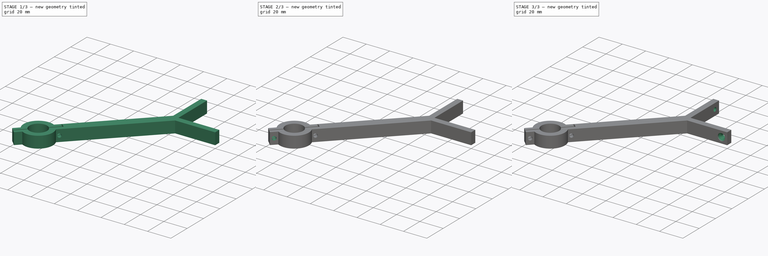
[diagram: build sequence overview — one tinted view per stage of 3, left to right]
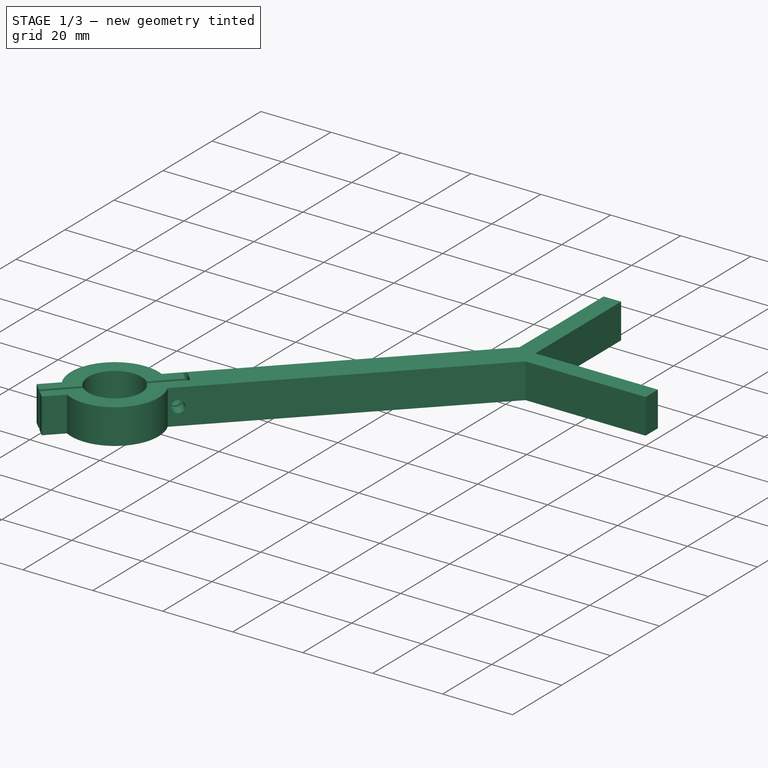
[diagram: stage 1 of 3 — iso view after this stage's code; geometry added in this stage tinted green]
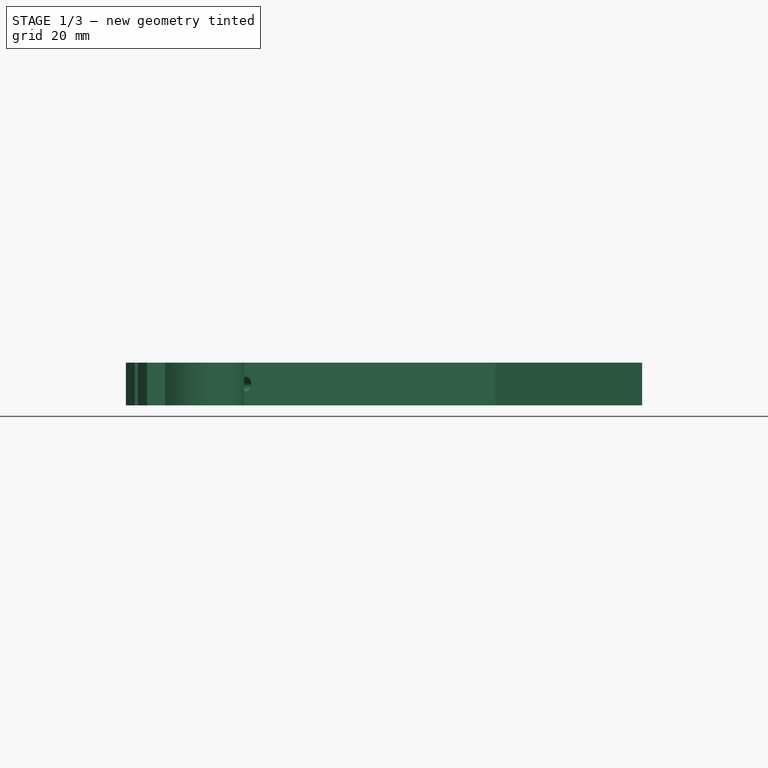
[diagram: stage 1 of 3 — front view after this stage's code; geometry added in this stage tinted green]
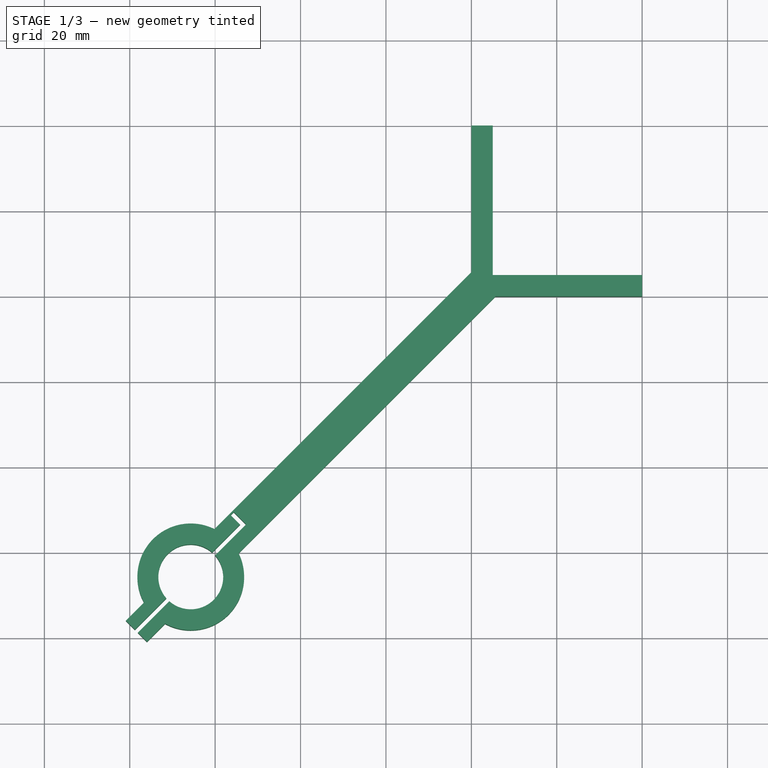
[diagram: stage 1 of 3 — top view after this stage's code; geometry added in this stage tinted green]
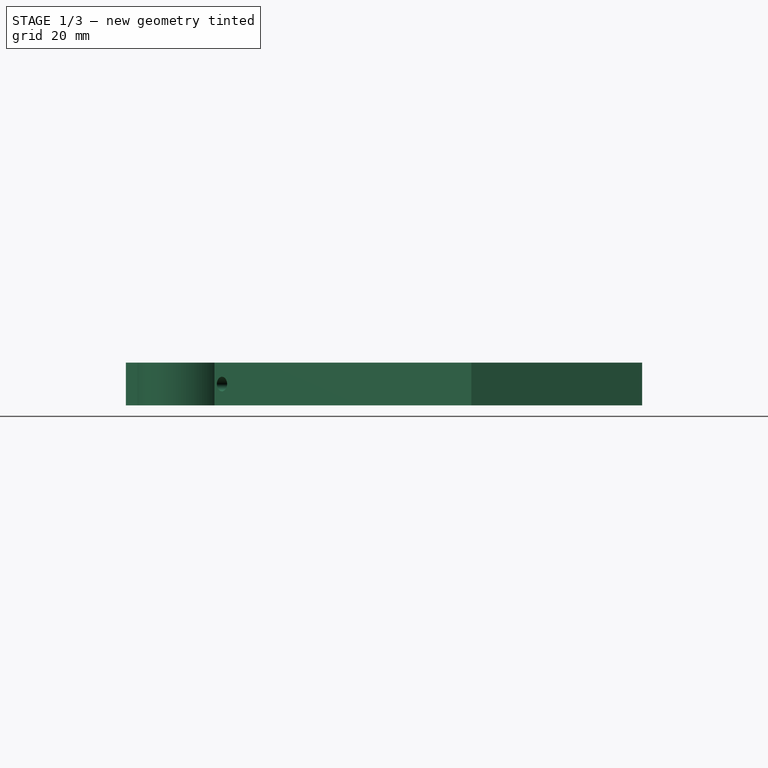
[diagram: stage 1 of 3 — right view after this stage's code; geometry added in this stage tinted green]
FCSTD DOCUMENT  (FreeCAD 0.21R33771 (Git))
Label: holders
License: All rights reserved
LicenseURL: https://en.wikipedia.org/wiki/All_rights_reserved
objects: Sketcher::SketchObject×5, PartDesign::Hole×4, PartDesign::Pad×1, PartDesign::Body×1
note: 16 computed .brp shape members not serialized (recipe doc carries the construction recipe); baked Part::Feature solids carry a one-line shape summary decoded from their .brp

FEATURE [Sketcher::SketchObject] Sketch
  FullyConstrained = true
  MapMode = 5
  Support = -> [XY_Plane]
  sketch-geometry (33):
    g0: LineSegment StartX=0 StartY=40 StartZ=0 EndX=0 EndY=5.65685 EndZ=0
    g1: LineSegment StartX=0 StartY=5.65685 StartZ=0 EndX=-55.9224 EndY=-50.2655 EndZ=0
    g2: LineSegment StartX=-54.5082 StartY=-60.165 StartZ=0 EndX=5.65685 EndY=0 EndZ=0
    g3: LineSegment StartX=5.65685 StartY=0 StartZ=0 EndX=40 EndY=0 EndZ=0
    g4: LineSegment StartX=40 StartY=0 StartZ=0 EndX=40 EndY=5 EndZ=0
    g5: LineSegment StartX=40 StartY=5 StartZ=0 EndX=5 EndY=5 EndZ=0
    g6: LineSegment StartX=0 StartY=40 StartZ=0 EndX=5 EndY=40 EndZ=0
    g7: LineSegment StartX=5 StartY=5 StartZ=0 EndX=5 EndY=40 EndZ=0
    g8: LineSegment StartX=5 StartY=5 StartZ=0 EndX=-65.7107 EndY=-65.7107 EndZ=0
    g9: LineSegment StartX=-71.4266 StartY=-70.7195 StartZ=0 EndX=-70.7195 EndY=-71.4266 EndZ=0
    g10: GeomPoint X=-76.6708 Y=-71.7211 Z=0
    g11: GeomPoint X=-71.7211 Y=-76.6708 Z=0
    g12: LineSegment StartX=-76.6708 StartY=-71.7211 StartZ=0 EndX=-80.9135 EndY=-75.9637 EndZ=0
    g13: LineSegment StartX=-80.9135 StartY=-75.9637 StartZ=0 EndX=-78.7922 EndY=-78.085 EndZ=0
    g14: LineSegment StartX=-71.7211 StartY=-76.6708 StartZ=0 EndX=-75.9637 EndY=-80.9135 EndZ=0
    g15: LineSegment StartX=-78.085 StartY=-78.7922 StartZ=0 EndX=-75.9637 EndY=-80.9135 EndZ=0
    g16: ArcOfCircle CenterX=-65.7107 CenterY=-65.7107 CenterZ=0 NormalX=0 NormalY=0 NormalZ=1 AngleXU=0 Radius=12.5 StartAngle=4.21078 EndAngle=6.74285
    g17: LineSegment StartX=-71.4266 StartY=-70.7195 StartZ=0 EndX=-78.7922 EndY=-78.085 EndZ=0
    g18: LineSegment StartX=-70.7195 StartY=-71.4266 StartZ=0 EndX=-78.085 EndY=-78.7922 EndZ=0
    g19: LineSegment StartX=-52.7404 StartY=-53.4475 StartZ=0 EndX=-59.9948 EndY=-60.7019 EndZ=0
    g20: ArcOfCircle CenterX=-65.7107 CenterY=-65.7107 CenterZ=0 NormalX=0 NormalY=0 NormalZ=1 AngleXU=0 Radius=7.6 StartAngle=3.99283 EndAngle=7.00275
    g21: GeomPoint X=-56.9831 Y=-57.6902 Z=0
    g22: LineSegment StartX=-56.9831 StartY=-57.6902 StartZ=0 EndX=-54.5082 EndY=-60.165 EndZ=0
    g23: ArcOfCircle CenterX=-65.7107 CenterY=-65.7107 CenterZ=0 NormalX=0 NormalY=0 NormalZ=1 AngleXU=0 Radius=7.6 StartAngle=0.851235 EndAngle=3.86115
    g24: ArcOfCircle CenterX=-65.7107 CenterY=-65.7107 CenterZ=0 NormalX=0 NormalY=0 NormalZ=1 AngleXU=0 Radius=12.5 StartAngle=1.11113 EndAngle=3.6432
    g25: LineSegment StartX=-60.7019 StartY=-59.9948 StartZ=0 EndX=-54.1546 EndY=-53.4475 EndZ=0
    g26: LineSegment StartX=-60.165 StartY=-54.5082 StartZ=0 EndX=-56.6295 EndY=-50.9726 EndZ=0
    g27: LineSegment StartX=-56.6295 StartY=-50.9726 StartZ=0 EndX=-55.9224 EndY=-50.2655 EndZ=0
    g28: LineSegment StartX=-54.1546 StartY=-53.4475 StartZ=0 EndX=-56.3467 EndY=-51.2555 EndZ=0
    g29: LineSegment StartX=-56.3467 StartY=-51.2555 StartZ=0 EndX=-55.6396 EndY=-50.5484 EndZ=0
    g30: LineSegment StartX=-55.6396 StartY=-50.5484 StartZ=0 EndX=-52.7404 EndY=-53.4475 EndZ=0
    g31: LineSegment StartX=-60.7019 StartY=-59.9948 StartZ=0 EndX=-59.9948 EndY=-60.7019 EndZ=0
    g32: LineSegment StartX=-55.9224 StartY=-50.2655 StartZ=0 EndX=-55.6396 EndY=-50.5484 EndZ=0
  constraints (90):
    c: PointOnObject(g0,g-2)
    c: PointOnObject(g0,g-2)
    c: Coincident(g2,g16)
    c: PointOnObject(g2,g-1)
    c: Coincident(g3,g2)
    c: PointOnObject(g3,g-1)
    c: Coincident(g4,g3)
    c: Coincident(g5,g4)
    c: Horizontal(g5)
    c: Coincident(g6,g0)
    c: Horizontal(g6)
    c: Coincident(g7,g5)
    c: Coincident(g7,g6)
    c: Vertical(g7)
    c: Parallel(g1,g2)
    c: Coincident(g0,g1)
    c: Equal(g6,g4)
    c: Vertical(g4)
    c: Equal(g7,g5)
    c: Angle(g-1,g2) = 0.785398
    c: Equal(g3,g0)
    c: Distance(g4) = 5
    c: Coincident(g8,g5)
    c: PointOnObject(g-1,g8)
    c: Distance(g8) = 100
    c: Distance(g7) = 35
    c: Perpendicular(g9,g8)
    c: Coincident(g12,g10)
    c: Coincident(g13,g12)
    c: Coincident(g14,g11)
    c: Coincident(g15,g14)
    c: Perpendicular(g12,g13)
    c: Equal(g13,g15)
    c: Distance(g9) = 1
    c: Coincident(g16,g14)
    c: Coincident(g17,g13)
    c: Coincident(g18,g15)
    c: Parallel(g17,g18)
    c: Parallel(g18,g8)
    c: Parallel(g12,g17)
    c: Parallel(g14,g18)
    c: Perpendicular(g15,g18)
    c: Equal(g17,g18)
    c: Diameter(g16) = 25
    c: Distance(g13) = 3
    c: Distance(g12) = 6
    c: Distance(g0,g2) = 8
    c: Coincident(g20,g16)
    c: Coincident(g20,g18)
    c: Coincident(g20,g19)
    c: Parallel(g19,g2)
    c: PointOnObject(g21,g19)
    c: Coincident(g22,g21)
    c: Coincident(g22,g2)
    c: Perpendicular(g19,g22)
    c: Coincident(g23,g8)
    c: Coincident(g23,g17)
    c: Equal(g23,g20)
    c: Coincident(g17,g9)
    c: Coincident(g18,g9)
    c: Diameter(g23) = 15.2
    c: Coincident(g23,g16)
    c: Coincident(g24,g16)
    c: Coincident(g24,g12)
    c: Coincident(g25,g23)
    c: Coincident(g26,g24)
    c: Parallel(g25,g19)
    c: Parallel(g26,g25)
    c: Distance(g23,g19) = 1
    c: Coincident(g27,g26)
    c: Coincident(g27,g1)
    c: Parallel(g26,g27)
    c: Distance(g26,g1) = 1
    c: Distance(g21,g19) = 6
    c: Equal(g24,g16)
    c: Coincident(g28,g25)
    c: Coincident(g29,g28)
    c: Coincident(g30,g29)
    c: Coincident(g30,g19)
    c: Perpendicular(g30,g1)
    c: Perpendicular(g30,g29)
    c: Distance(g1,g29) = 0.4
    c: Parallel(g30,g28)
    c: Equal(g27,g29)
    c: Coincident(g31,g23)
    c: Coincident(g31,g19)
    c: Perpendicular(g31,g8)
    c: Coincident(g32,g1)
    c: Coincident(g32,g29)
    c: Perpendicular(g32,g1)
FEATURE [PartDesign::Pad] Pad
  Direction = (0,0,1)
  Length = 10
  Length2 = 10
  Profile = -> Sketch
  ReferenceAxis = -> Sketch [N_Axis]
  Type = 0
FEATURE [Sketcher::SketchObject] Sketch001
  ExternalGeometry = -> [Pad]
  FullyConstrained = true
  MapMode = 5
  Placement = pos=(-2.82843,2.82843,0) rot=(-0.281085,0.678598,0.678598;3.68962rad)
  Support = -> [Pad]
  sketch-geometry (4):
    g0: LineSegment StartX=76.0862 StartY=10 StartZ=0 EndX=81.0862 EndY=-3.6e-15 EndZ=0
    g1: LineSegment StartX=81.0862 StartY=10 StartZ=0 EndX=76.0862 EndY=-3.6e-15 EndZ=0
    g2: GeomPoint X=78.5862 Y=5 Z=0
    g3: Circle CenterX=78.5862 CenterY=5 CenterZ=0 NormalX=0 NormalY=0 NormalZ=1 AngleXU=0 Radius=1.5
  constraints (8):
    c: Coincident(g0,g-4)
    c: Coincident(g0,g-5)
    c: Coincident(g1,g-5)
    c: Coincident(g1,g-3)
    c: PointOnObject(g2,g1)
    c: PointOnObject(g2,g0)
    c: Coincident(g3,g2)
    c: Diameter(g3) = 3
FEATURE [Sketcher::SketchObject] Sketch002
  ExternalGeometry = -> [Pad]
  FullyConstrained = true
  MapMode = 5
  Placement = pos=(-2.47487,2.47487,0) rot=(-0.281085,0.678598,0.678598;3.68962rad)
  Support = -> [Pad]
  sketch-geometry (4):
    g0: LineSegment StartX=110.929 StartY=10 StartZ=0 EndX=104.929 EndY=0 EndZ=0
    g1: LineSegment StartX=104.929 StartY=10 StartZ=0 EndX=110.929 EndY=0 EndZ=0
    g2: GeomPoint X=107.929 Y=5 Z=0
    g3: Circle CenterX=107.929 CenterY=5 CenterZ=0 NormalX=0 NormalY=0 NormalZ=1 AngleXU=0 Radius=1.5
  constraints (8):
    c: Coincident(g0,g-4)
    c: Coincident(g0,g-5)
    c: Coincident(g1,g-5)
    c: Coincident(g1,g-4)
    c: PointOnObject(g2,g0)
    c: PointOnObject(g2,g1)
    c: Diameter(g3) = 3
    c: Coincident(g3,g2)
FEATURE [PartDesign::Hole] Hole
  BaseFeature = -> Pad
  CustomThreadClearance = 0
  Depth = 346.005
  DepthType = 1
  Diameter = 3.4
  DrillForDepth = false
  DrillPoint = 1
  DrillPointAngle = 118
  HoleCutCountersinkAngle = 90
  HoleCutCustomValues = false
  HoleCutDepth = 0
  HoleCutDiameter = 6.1
  HoleCutType = 0
  ModelThread = false
  Profile = -> Sketch001
  Tapered = false
  TaperedAngle = 90
  ThreadClass = 0
  ThreadDepth = 346.005
  ThreadDepthType = 0
  ThreadDirection = 0
  ThreadFit = 0
  ThreadSize = 9
  ThreadType = 1
  Threaded = false
  UseCustomThreadClearance = false
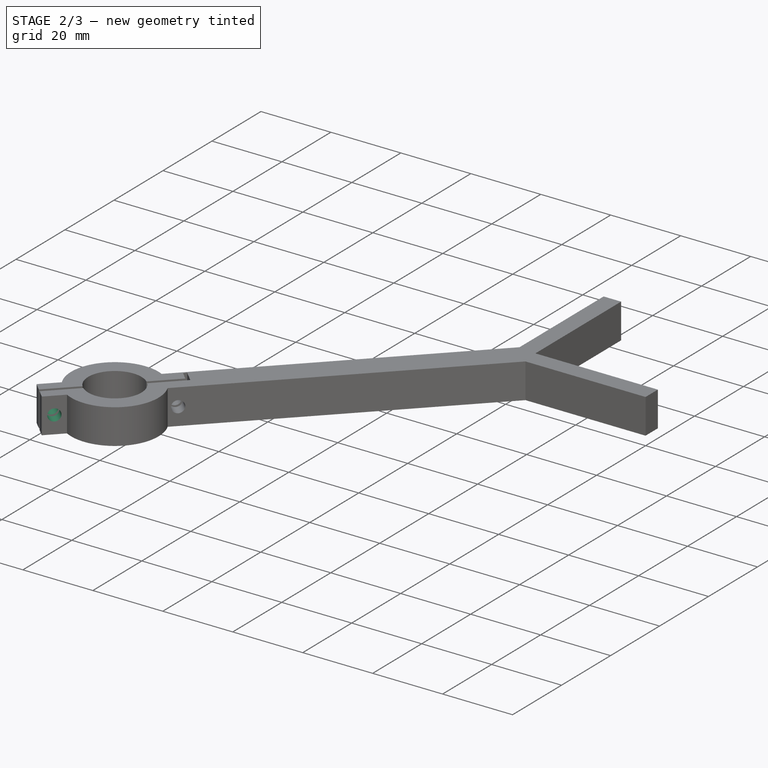
[diagram: stage 2 of 3 — iso view after this stage's code; geometry added in this stage tinted green]
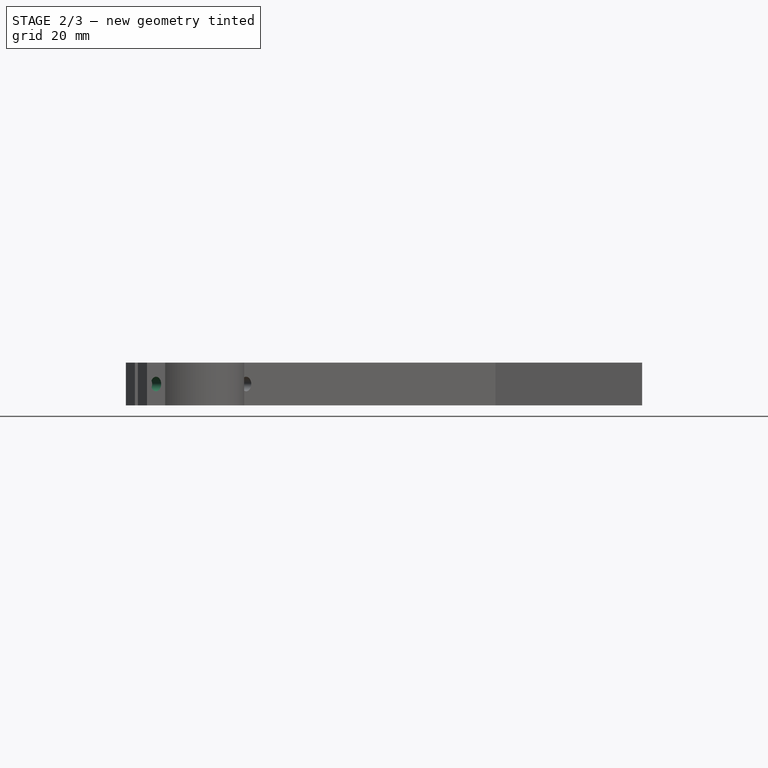
[diagram: stage 2 of 3 — front view after this stage's code; geometry added in this stage tinted green]
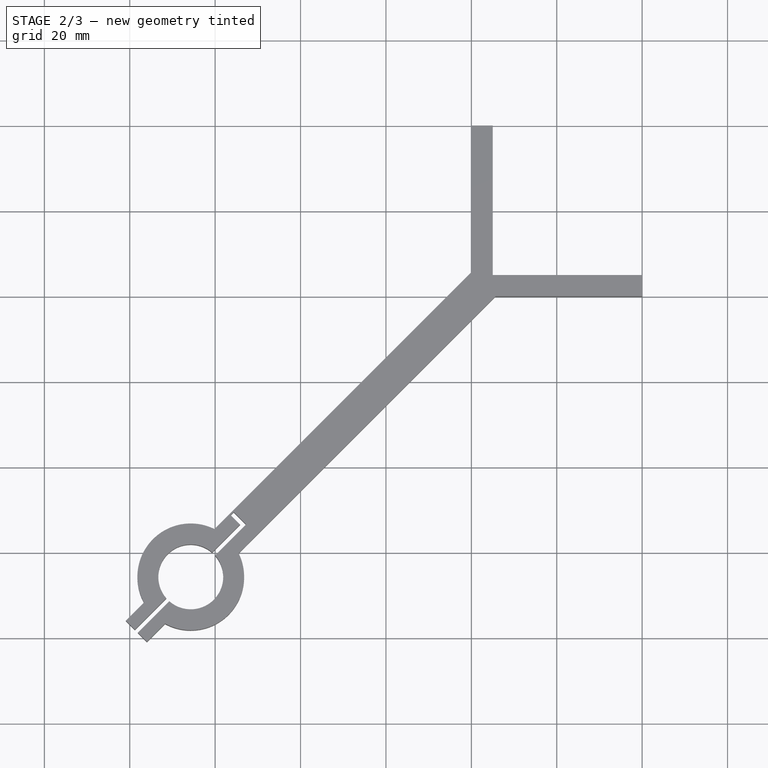
[diagram: stage 2 of 3 — top view after this stage's code; geometry added in this stage tinted green]
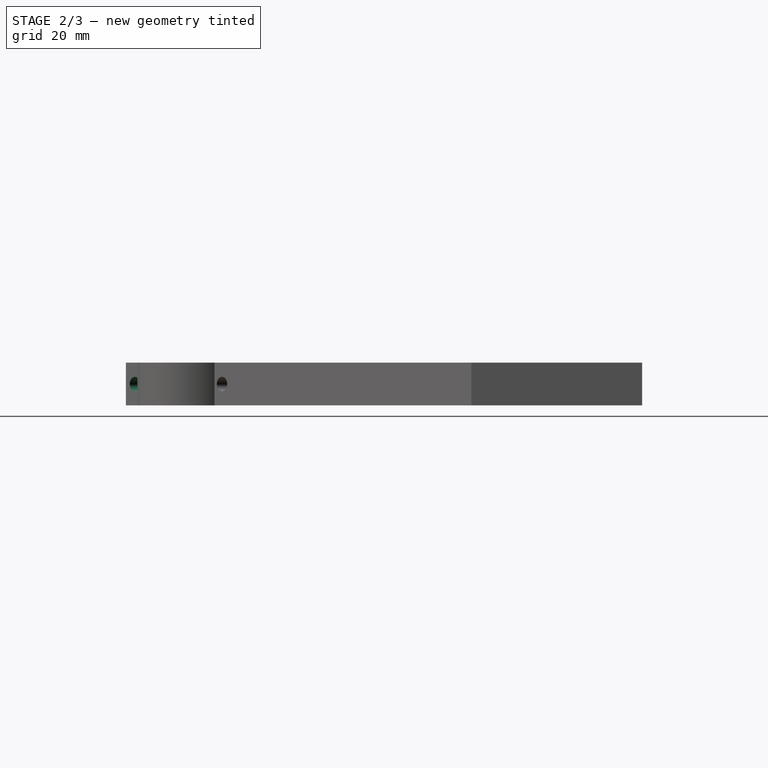
[diagram: stage 2 of 3 — right view after this stage's code; geometry added in this stage tinted green]
FEATURE [PartDesign::Hole] Hole001
  BaseFeature = -> Hole
  CustomThreadClearance = 0
  Depth = 346.005
  DepthType = 1
  Diameter = 3.4
  DrillForDepth = false
  DrillPoint = 1
  DrillPointAngle = 118
  HoleCutCountersinkAngle = 90
  HoleCutCustomValues = false
  HoleCutDepth = 0
  HoleCutDiameter = 6.1
  HoleCutType = 0
  ModelThread = false
  Profile = -> Sketch002
  Tapered = false
  TaperedAngle = 90
  ThreadClass = 0
  ThreadDepth = 346.005
  ThreadDepthType = 0
  ThreadDirection = 0
  ThreadFit = 0
  ThreadSize = 9
  ThreadType = 1
  Threaded = false
  UseCustomThreadClearance = false
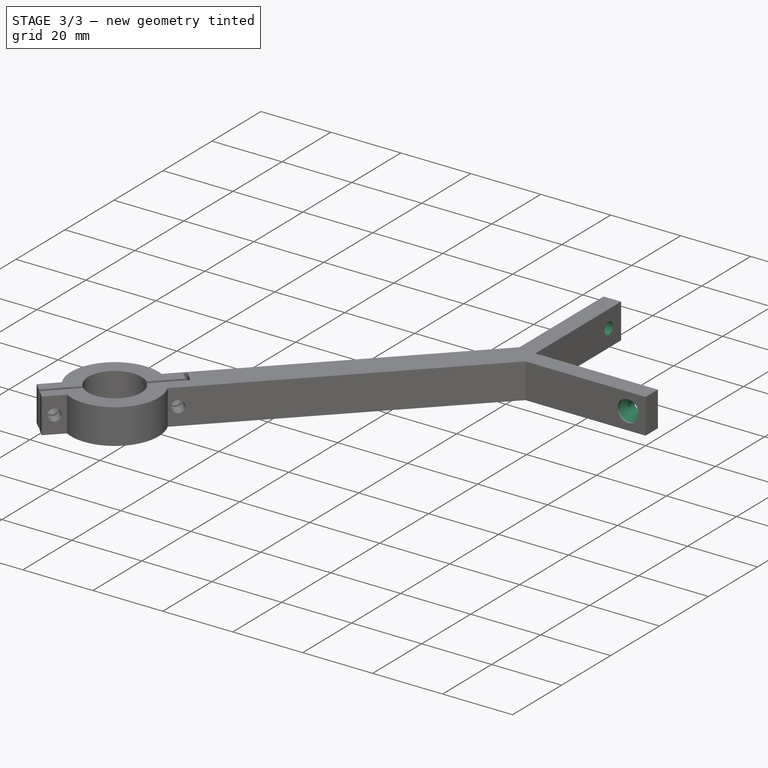
[diagram: stage 3 of 3 — iso view after this stage's code; geometry added in this stage tinted green]
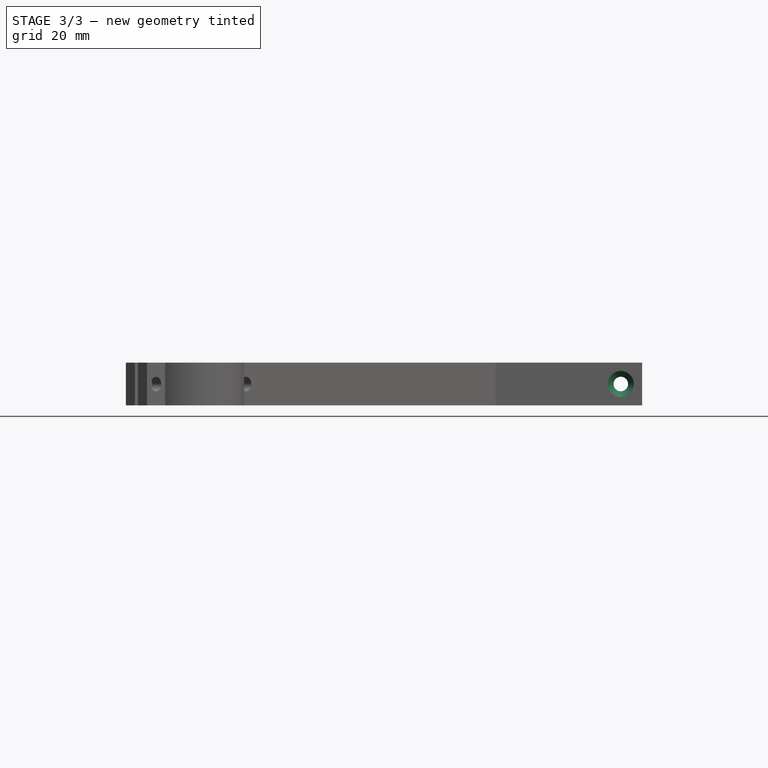
[diagram: stage 3 of 3 — front view after this stage's code; geometry added in this stage tinted green]
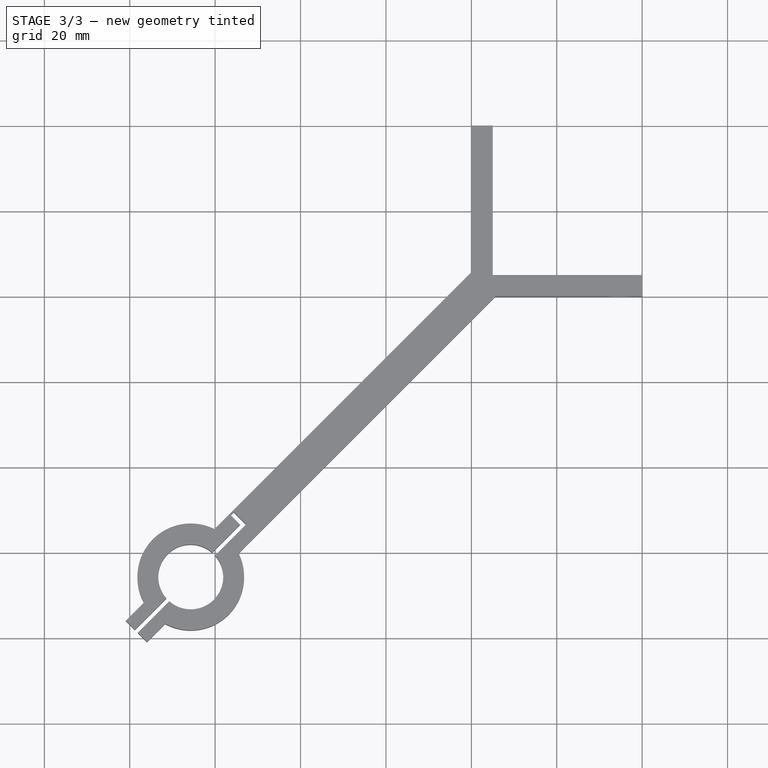
[diagram: stage 3 of 3 — top view after this stage's code; geometry added in this stage tinted green]
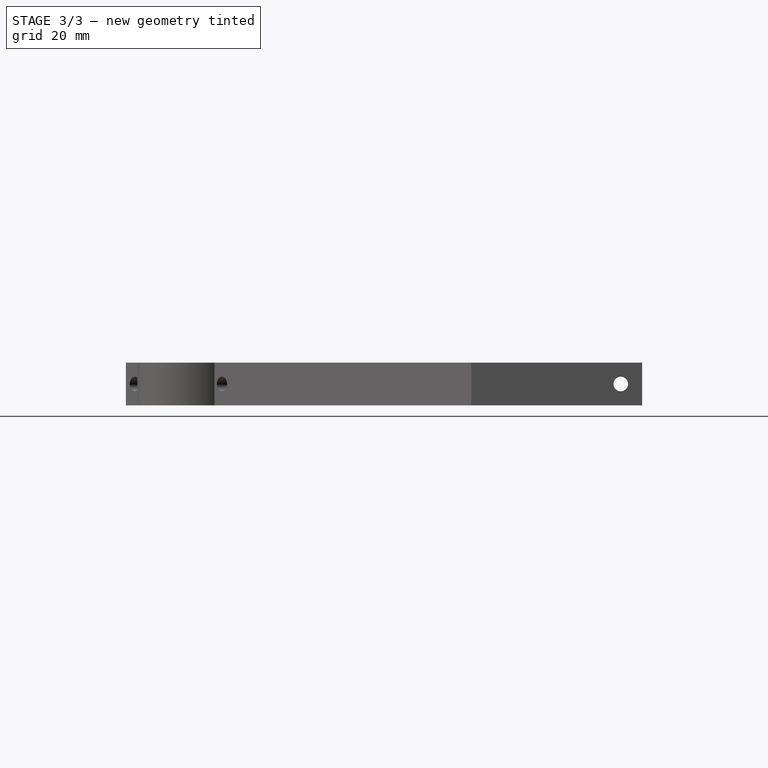
[diagram: stage 3 of 3 — right view after this stage's code; geometry added in this stage tinted green]
FEATURE [Sketcher::SketchObject] Sketch003
  ExternalGeometry = -> [Hole001]
  FullyConstrained = true
  MapMode = 5
  Placement = pos=(0,0,0) rot=(1,0,0;1.5708rad)
  Support = -> [Hole001]
  sketch-geometry (3):
    g0: Circle CenterX=35 CenterY=5 CenterZ=0 NormalX=0 NormalY=0 NormalZ=1 AngleXU=0 Radius=1.5
    g1: LineSegment StartX=40 StartY=10 StartZ=0 EndX=35 EndY=5 EndZ=0
    g2: LineSegment StartX=35 StartY=5 StartZ=0 EndX=40 EndY=0 EndZ=0
  constraints (7):
    c: Diameter(g0) = 3
    c: DistanceX(g0,g-3) = 5
    c: Coincident(g1,g-3)
    c: Coincident(g1,g0)
    c: Coincident(g2,g0)
    c: Coincident(g2,g-3)
    c: Equal(g1,g2)
FEATURE [Sketcher::SketchObject] Sketch004
  ExternalGeometry = -> [Hole001]
  FullyConstrained = true
  MapMode = 5
  Placement = pos=(0,0,0) rot=(0.57735,-0.57735,-0.57735;2.0944rad)
  Support = -> [Hole001]
  sketch-geometry (3):
    g0: Circle CenterX=-35 CenterY=5 CenterZ=0 NormalX=0 NormalY=0 NormalZ=1 AngleXU=0 Radius=1.5
    g1: LineSegment StartX=-40 StartY=10 StartZ=0 EndX=-35 EndY=5 EndZ=0
    g2: LineSegment StartX=-40 StartY=0 StartZ=0 EndX=-35 EndY=5 EndZ=0
  constraints (7):
    c: Diameter(g0) = 3
    c: DistanceX(g-3,g0) = 5
    c: Coincident(g1,g-3)
    c: Coincident(g1,g0)
    c: Coincident(g2,g-3)
    c: Coincident(g2,g0)
    c: Equal(g1,g2)
FEATURE [PartDesign::Hole] Hole002
  BaseFeature = -> Hole001
  CustomThreadClearance = 0
  Depth = 25
  DepthType = 0
  Diameter = 3.4
  DrillForDepth = false
  DrillPoint = 1
  DrillPointAngle = 118
  HoleCutCountersinkAngle = 90
  HoleCutCustomValues = false
  HoleCutDepth = 1
  HoleCutDiameter = 6.1
  HoleCutType = 3
  ModelThread = false
  Profile = -> Sketch003
  Tapered = false
  TaperedAngle = 90
  ThreadClass = 0
  ThreadDepth = 25
  ThreadDepthType = 0
  ThreadDirection = 0
  ThreadFit = 0
  ThreadSize = 9
  ThreadType = 1
  Threaded = false
  UseCustomThreadClearance = false
FEATURE [PartDesign::Hole] Hole003
  BaseFeature = -> Hole002
  CustomThreadClearance = 0
  Depth = 25
  DepthType = 0
  Diameter = 3.4
  DrillForDepth = false
  DrillPoint = 1
  DrillPointAngle = 118
  HoleCutCountersinkAngle = 90
  HoleCutCustomValues = false
  HoleCutDepth = 1
  HoleCutDiameter = 6.1
  HoleCutType = 3
  ModelThread = false
  Profile = -> Sketch004
  Tapered = false
  TaperedAngle = 90
  ThreadClass = 0
  ThreadDepth = 25
  ThreadDepthType = 0
  ThreadDirection = 0
  ThreadFit = 0
  ThreadSize = 9
  ThreadType = 1
  Threaded = false
  UseCustomThreadClearance = false
FEATURE [PartDesign::Body] Body
  Group = -> [Sketch,Pad,Sketch001,Sketch002,Hole,Hole001,Sketch003,Sketch004,Hole002,Hole003]
  Origin = -> Origin
  Tip = -> Hole003
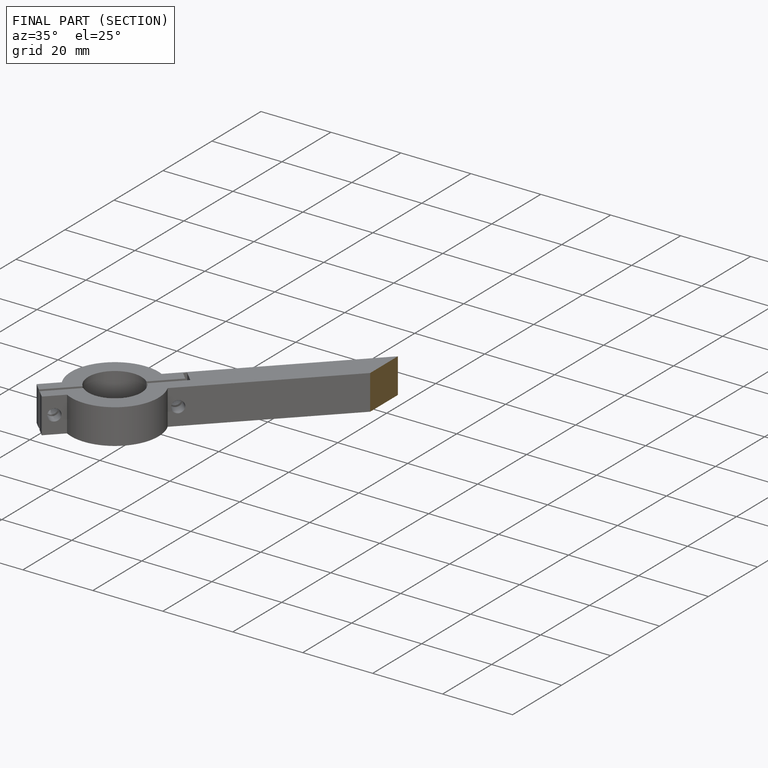
[diagram: finished part — half-section view (interior)]
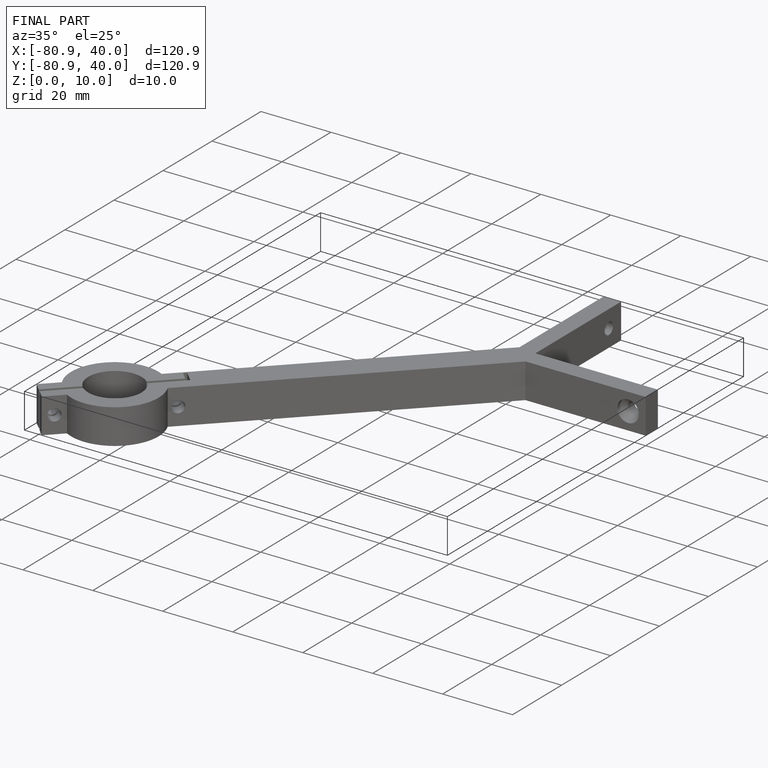
[diagram: finished part — iso view with bounding-box wireframe]
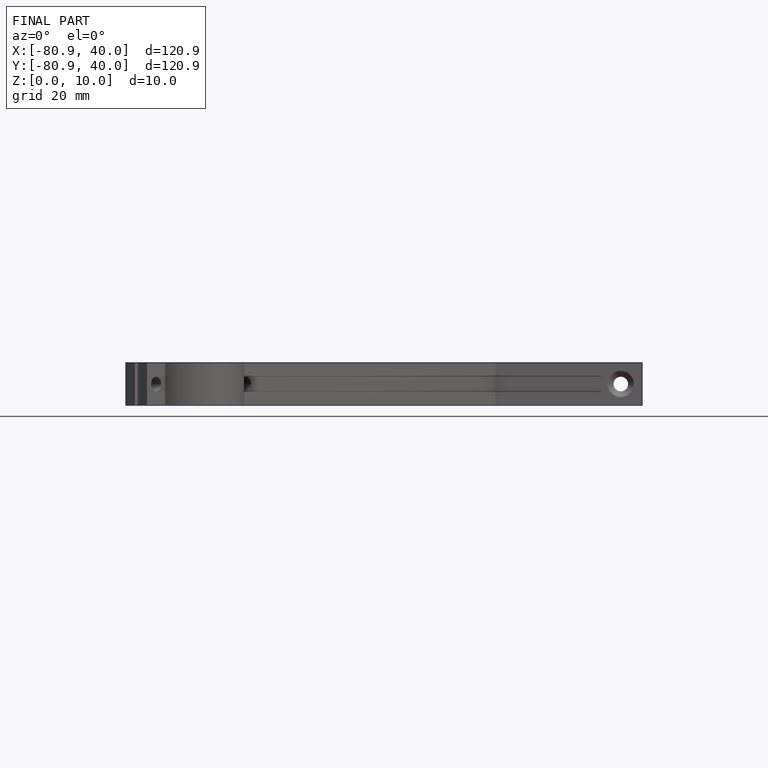
[diagram: finished part — front view with bounding-box wireframe]
